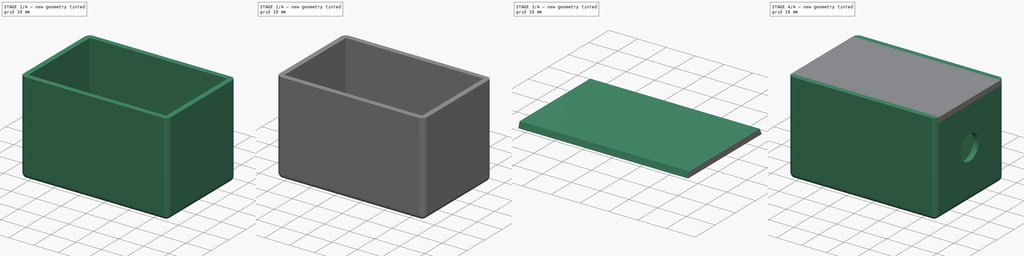
[diagram: build sequence overview — one tinted view per stage of 4, left to right]
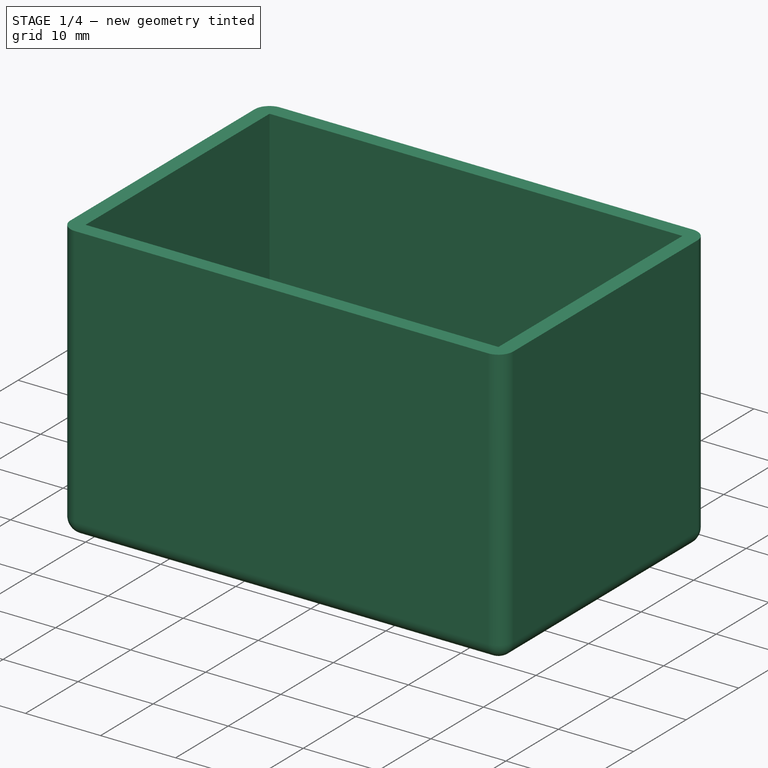
[diagram: stage 1 of 4 — iso view after this stage's code; geometry added in this stage tinted green]
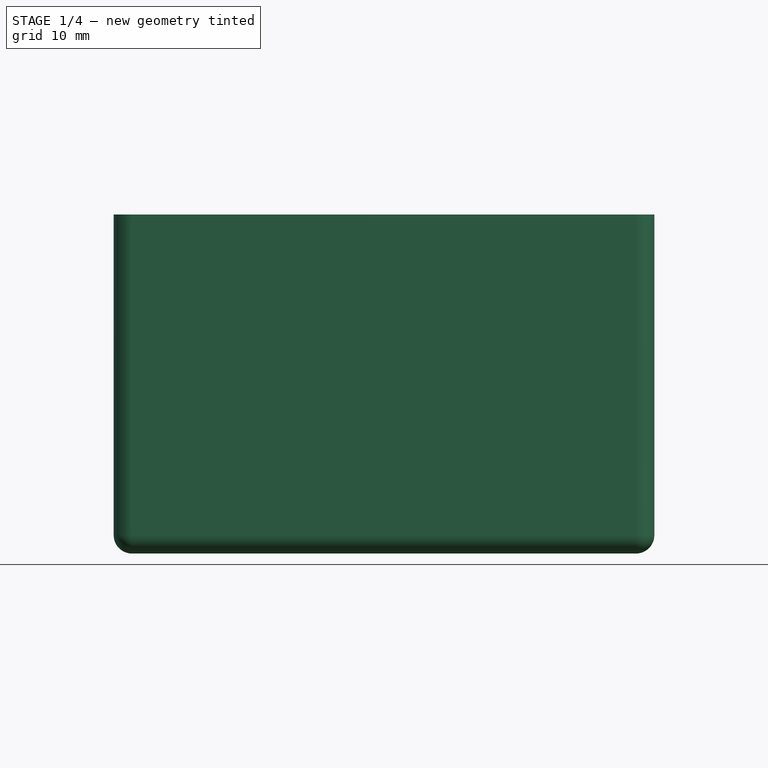
[diagram: stage 1 of 4 — front view after this stage's code; geometry added in this stage tinted green]
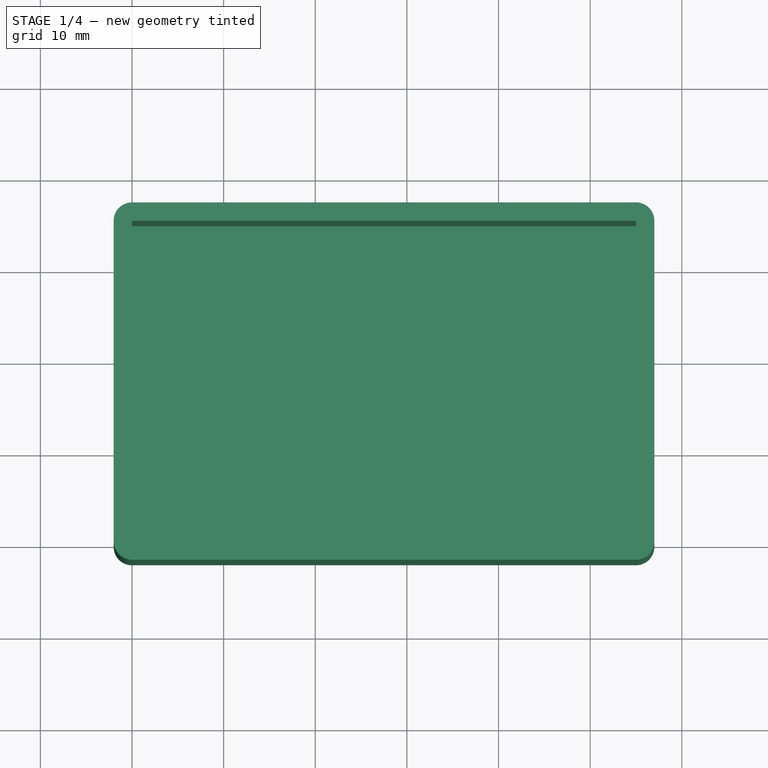
[diagram: stage 1 of 4 — top view after this stage's code; geometry added in this stage tinted green]
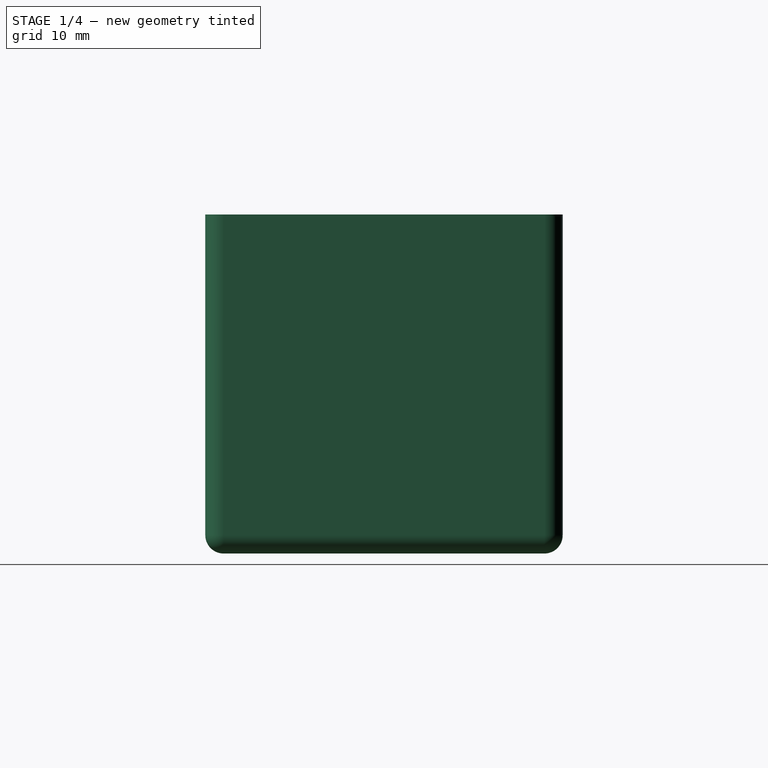
[diagram: stage 1 of 4 — right view after this stage's code; geometry added in this stage tinted green]
FCSTD DOCUMENT  (FreeCAD 0.20R29603 (Git))
Label: controlerBox
License: All rights reserved
LicenseURL: http://en.wikipedia.org/wiki/All_rights_reserved
objects: Sketcher::SketchObject×3, Part::Extrusion×3, Part::Cut×2, Part::Box×1, Part::Thickness×1, Part::MultiFuse×1, Part::FeaturePython×1
note: 12 computed .brp shape members not serialized (recipe doc carries the construction recipe); baked Part::Feature solids carry a one-line shape summary decoded from their .brp

FEATURE [Part::Box] Box  label="Cube"
  AttacherType = Attacher::AttachEngine3D
  Height = 35
  Length = 55
  Width = 35
FEATURE [Part::Thickness] Thickness
  Faces = -> Box [Face6]
  Intersection = false
  Join = 0
  Mode = 0
  SelfIntersection = false
  Value = 2
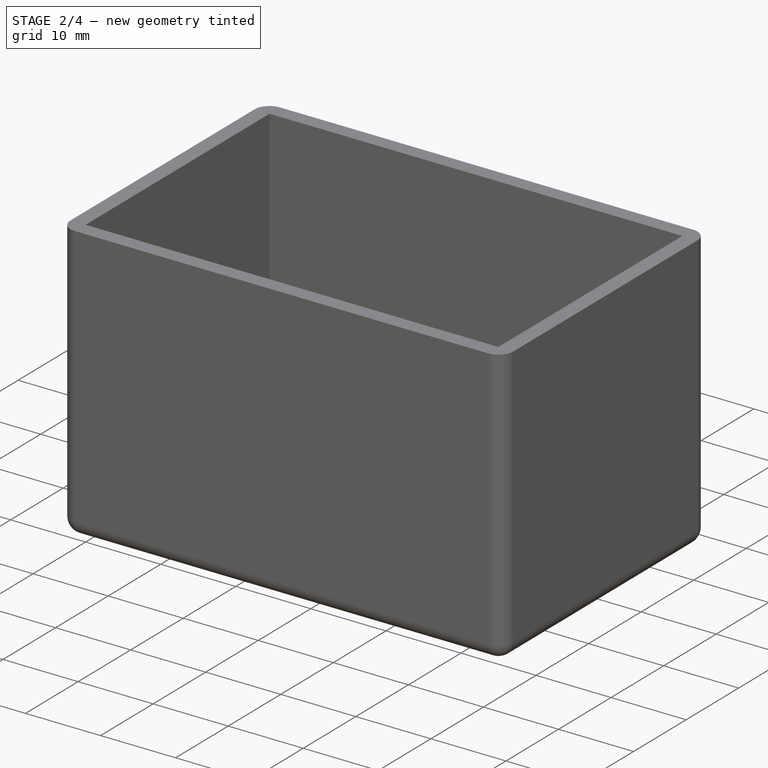
[diagram: stage 2 of 4 — iso view after this stage's code; geometry added in this stage tinted green]
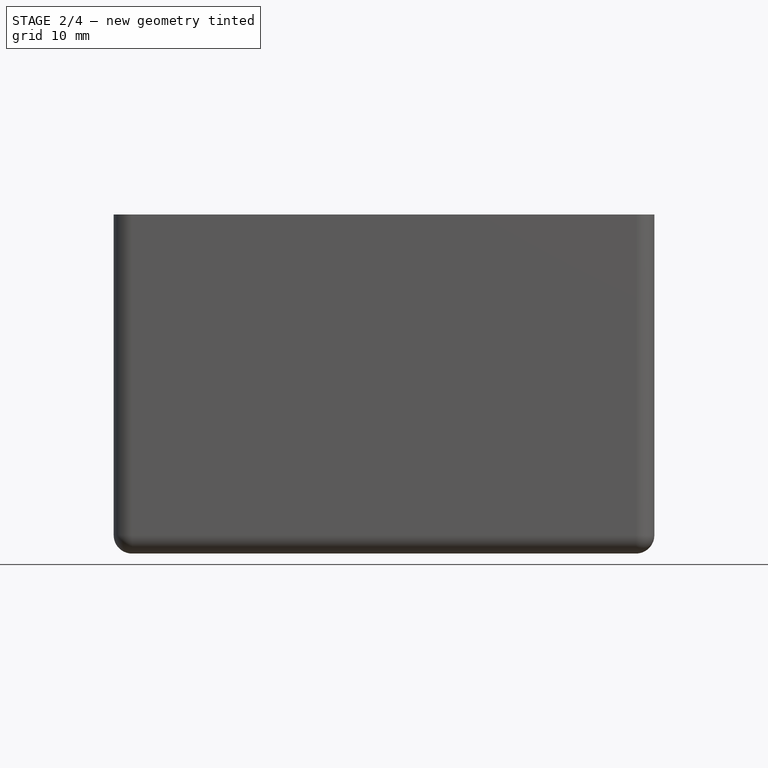
[diagram: stage 2 of 4 — front view after this stage's code; geometry added in this stage tinted green]
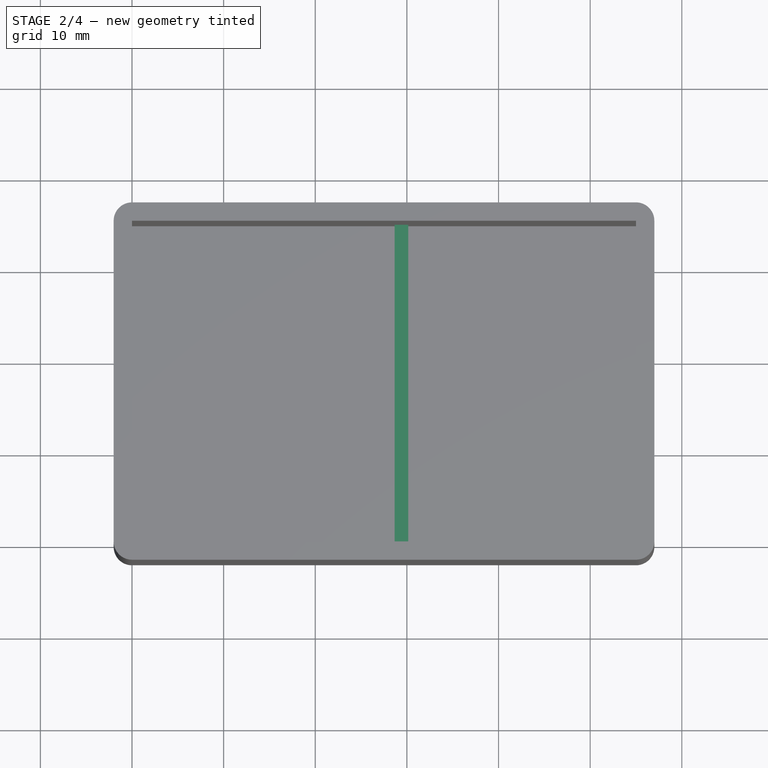
[diagram: stage 2 of 4 — top view after this stage's code; geometry added in this stage tinted green]
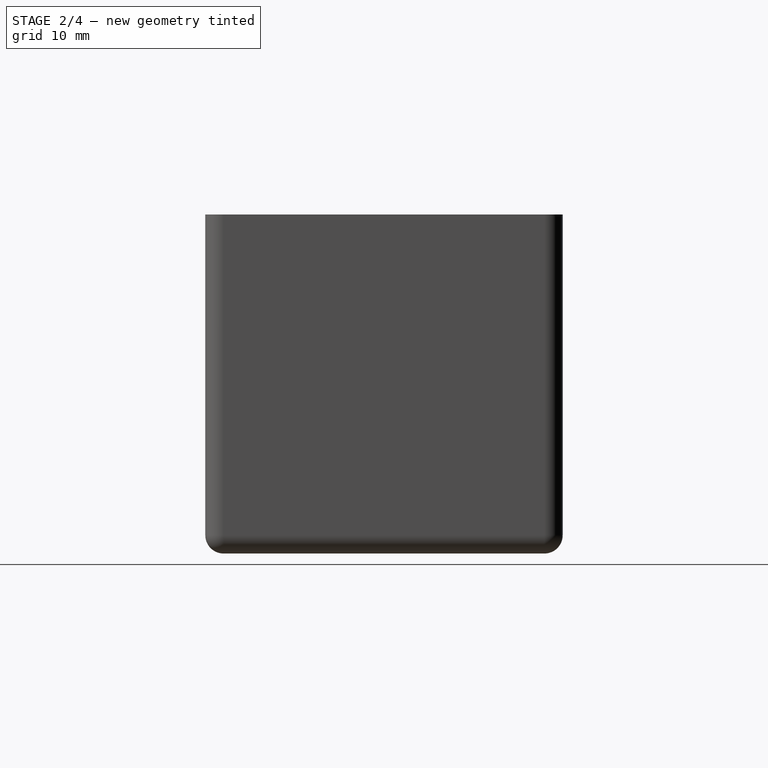
[diagram: stage 2 of 4 — right view after this stage's code; geometry added in this stage tinted green]
FEATURE [Sketcher::SketchObject] Sketch
  ExternalGeometry = -> [Thickness]
  FullyConstrained = false
  MapMode = 5
  Support = -> [Thickness]
  sketch-geometry (4):
    g0: LineSegment StartX=30.1467 StartY=35 StartZ=0 EndX=28.6553 EndY=35 EndZ=0
    g1: LineSegment StartX=28.6553 StartY=35 StartZ=0 EndX=28.6553 EndY=0 EndZ=0
    g2: LineSegment StartX=28.6553 StartY=0 StartZ=0 EndX=30.1467 EndY=0 EndZ=0
    g3: LineSegment StartX=30.1467 StartY=0 StartZ=0 EndX=30.1467 EndY=35 EndZ=0
  constraints (10):
    c: Coincident(g0,g1)
    c: Coincident(g1,g2)
    c: Coincident(g2,g3)
    c: Coincident(g3,g0)
    c: Horizontal(g0)
    c: Horizontal(g2)
    c: Vertical(g1)
    c: Vertical(g3)
    c: PointOnObject(g0,g-3)
    c: PointOnObject(g1,g-4)
FEATURE [Part::Extrusion] Extrude
  Base = -> Sketch
  Dir = (0,0,1)
  DirMode = 0
  FaceMakerClass = Part::FaceMakerBullseye
  LengthFwd = 10
  LengthRev = 0
  Solid = true
  Symmetric = false
FEATURE [Part::MultiFuse] Fusion
  Shapes = -> [Thickness,Extrude]
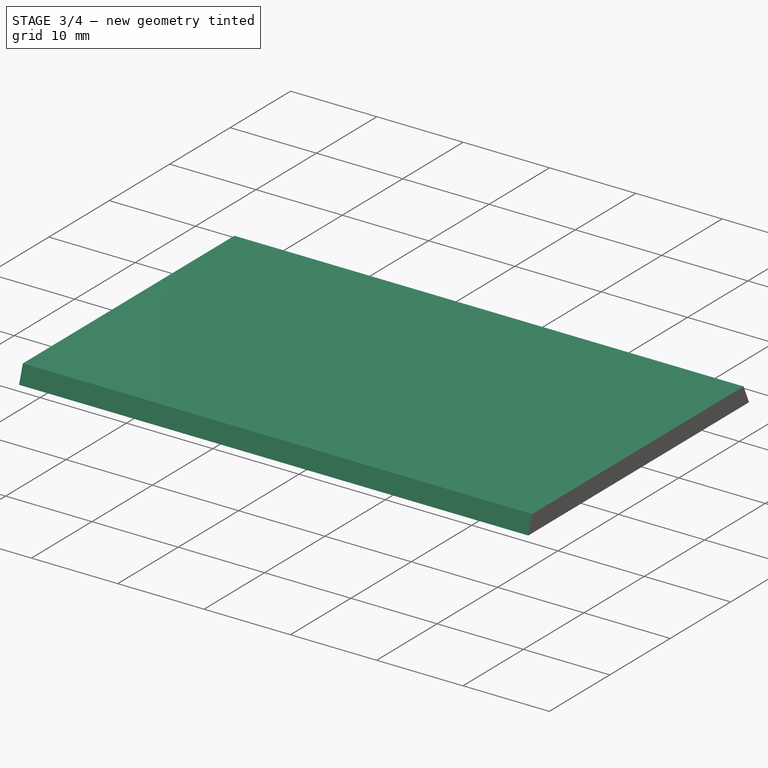
[diagram: stage 3 of 4 — iso view after this stage's code; geometry added in this stage tinted green]
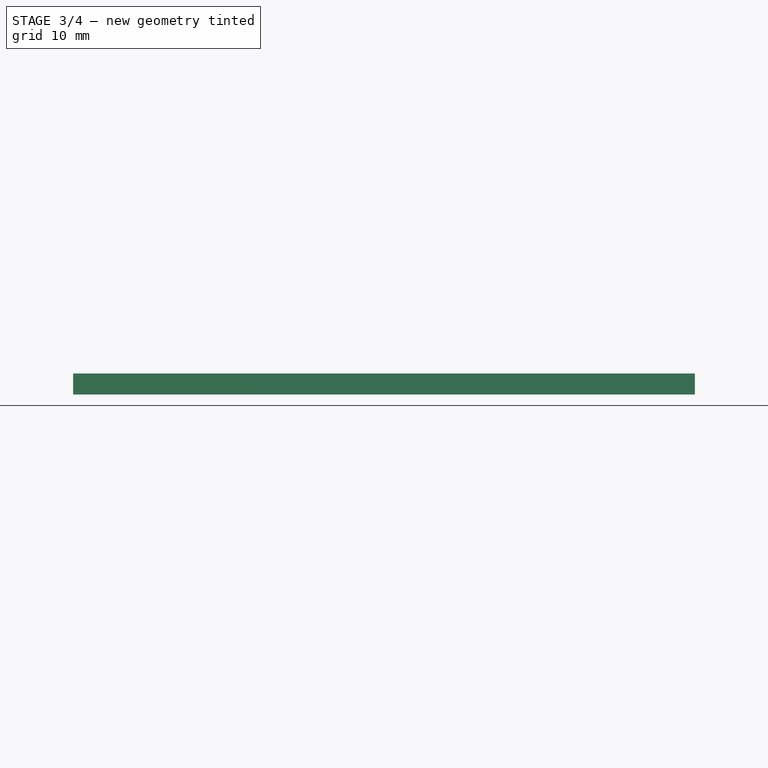
[diagram: stage 3 of 4 — front view after this stage's code; geometry added in this stage tinted green]
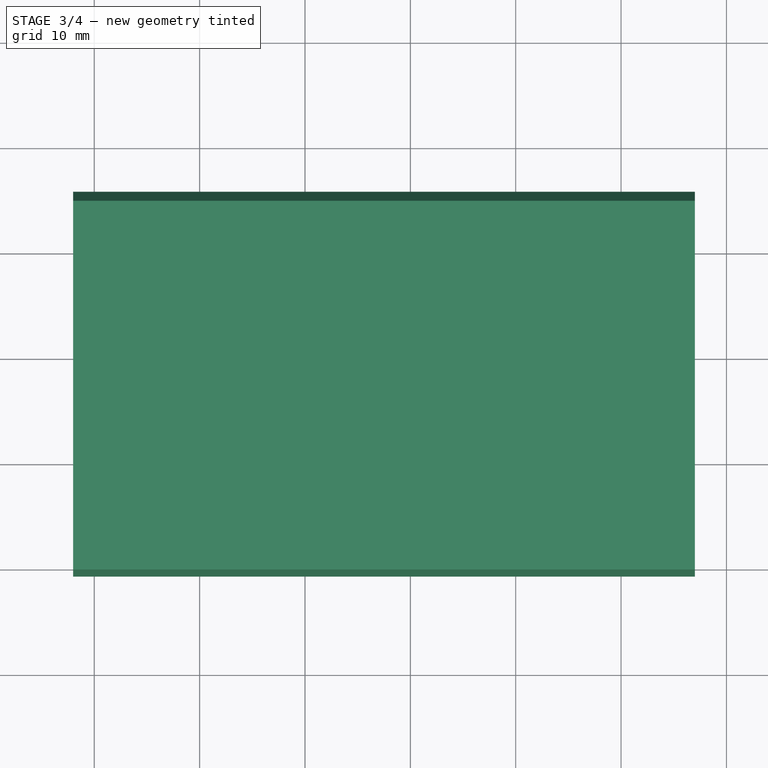
[diagram: stage 3 of 4 — top view after this stage's code; geometry added in this stage tinted green]
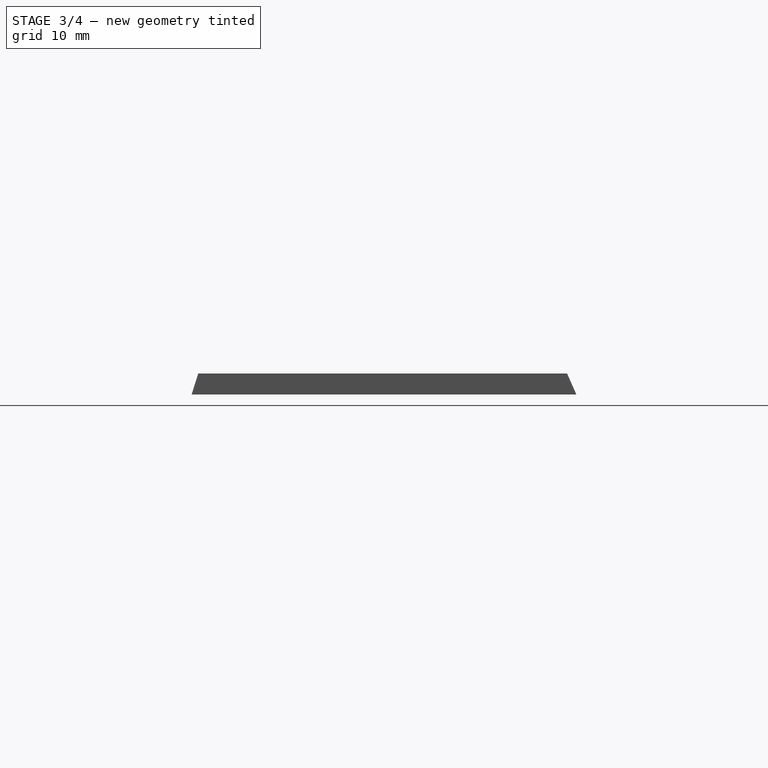
[diagram: stage 3 of 4 — right view after this stage's code; geometry added in this stage tinted green]
FEATURE [Sketcher::SketchObject] Sketch001
  ExternalGeometry = -> [Fusion]
  FullyConstrained = false
  MapMode = 5
  Placement = pos=(57,0,0) rot=(0.57735,0.57735,0.57735;2.0944rad)
  Support = -> [Fusion]
  sketch-geometry (3):
    g0: LineSegment StartX=35 StartY=35 StartZ=0 EndX=0 EndY=0 EndZ=0
    g1: LineSegment StartX=0 StartY=35 StartZ=0 EndX=35 EndY=0 EndZ=0
    g2: Circle CenterX=17.3834 CenterY=17.3834 CenterZ=0 NormalX=0 NormalY=0 NormalZ=1 AngleXU=0 Radius=5
  constraints (6):
    c: Coincident(g0,g-3)
    c: Coincident(g0,g-4)
    c: Coincident(g1,g-3)
    c: Coincident(g1,g-4)
    c: PointOnObject(g2,g0)
    c: Diameter(g2) = 10
FEATURE [Part::Extrusion] Extrude001
  Base = -> Sketch001
  Dir = (1,0,0)
  DirMode = 0
  FaceMakerClass = Part::FaceMakerBullseye
  LengthFwd = 4.5
  LengthRev = 0
  Solid = true
  Symmetric = true
FEATURE [Part::Cut] Cut  label="baseBox"
  Base = -> Fusion
  Tool = -> Extrude001
FEATURE [Sketcher::SketchObject] Sketch002
  ExternalGeometry = -> [Cut]
  FullyConstrained = false
  MapMode = 5
  Placement = pos=(57,0,0) rot=(0.57735,0.57735,0.57735;2.0944rad)
  Support = -> [Cut]
  sketch-geometry (4):
    g0: LineSegment StartX=-0.633947 StartY=33 StartZ=0 EndX=35.8886 EndY=33 EndZ=0
    g1: LineSegment StartX=35 StartY=35 StartZ=0 EndX=35.8886 EndY=33 EndZ=0
    g2: LineSegment StartX=0 StartY=35 StartZ=0 EndX=-0.633947 EndY=33 EndZ=0
    g3: LineSegment StartX=0 StartY=35 StartZ=0 EndX=35 EndY=35 EndZ=0
  constraints (12):
    c: Horizontal(g0)
    c: DistanceY(g0,g-7) = 2
    c: DistanceX(g-6,g-5) = 2
    c: DistanceX(g-4,g-7) = 2
    c: DistanceX(g-4,g-7) = 2
    c: DistanceX(g-4,g-4) = 2
    c: Coincident(g1,g-6)
    c: Coincident(g1,g0)
    c: Coincident(g2,g-7)
    c: Coincident(g2,g0)
    c: Coincident(g3,g2)
    c: Coincident(g3,g1)
FEATURE [Part::Extrusion] Extrude002
  Base = -> Sketch002
  Dir = (1,0,0)
  DirMode = 0
  FaceMakerClass = Part::FaceMakerBullseye
  LengthFwd = 59
  LengthRev = 0
  Reversed = true
  Solid = true
  Symmetric = false
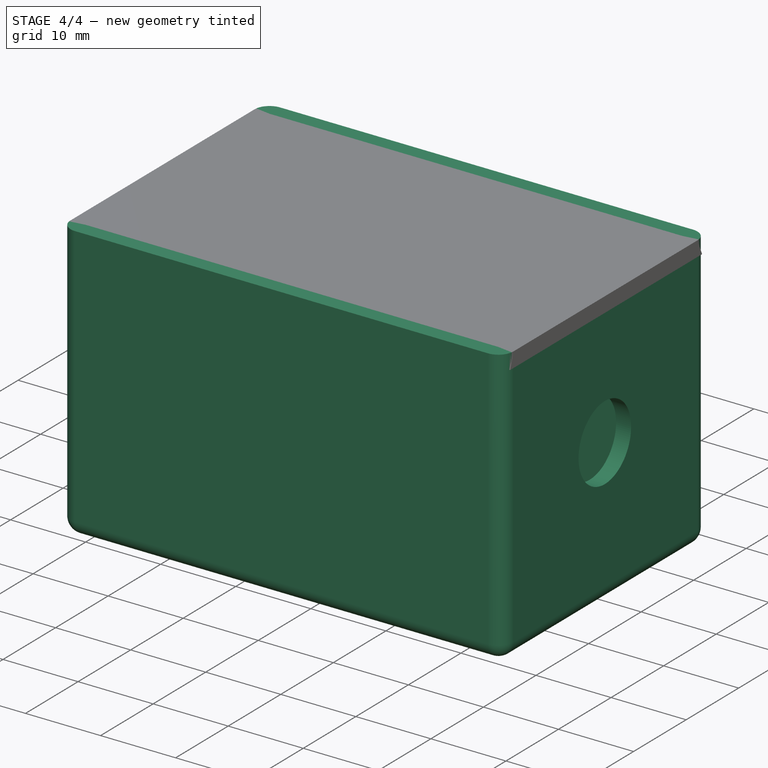
[diagram: stage 4 of 4 — iso view after this stage's code; geometry added in this stage tinted green]
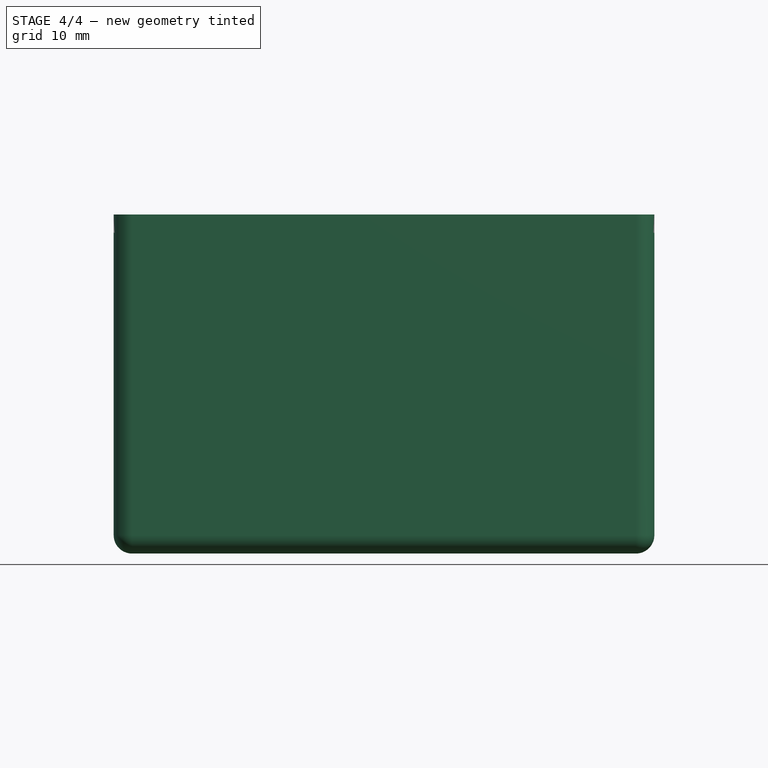
[diagram: stage 4 of 4 — front view after this stage's code; geometry added in this stage tinted green]
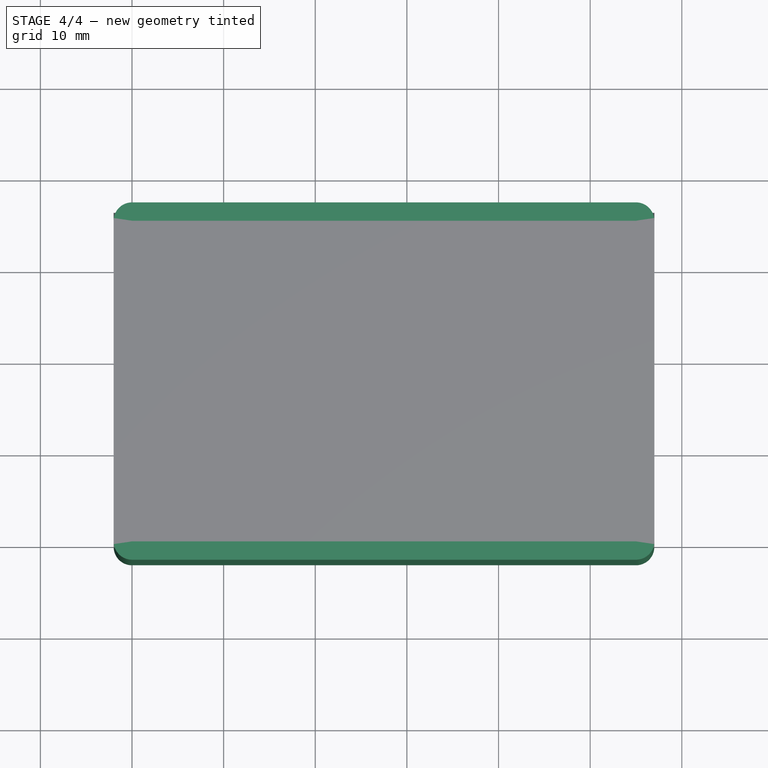
[diagram: stage 4 of 4 — top view after this stage's code; geometry added in this stage tinted green]
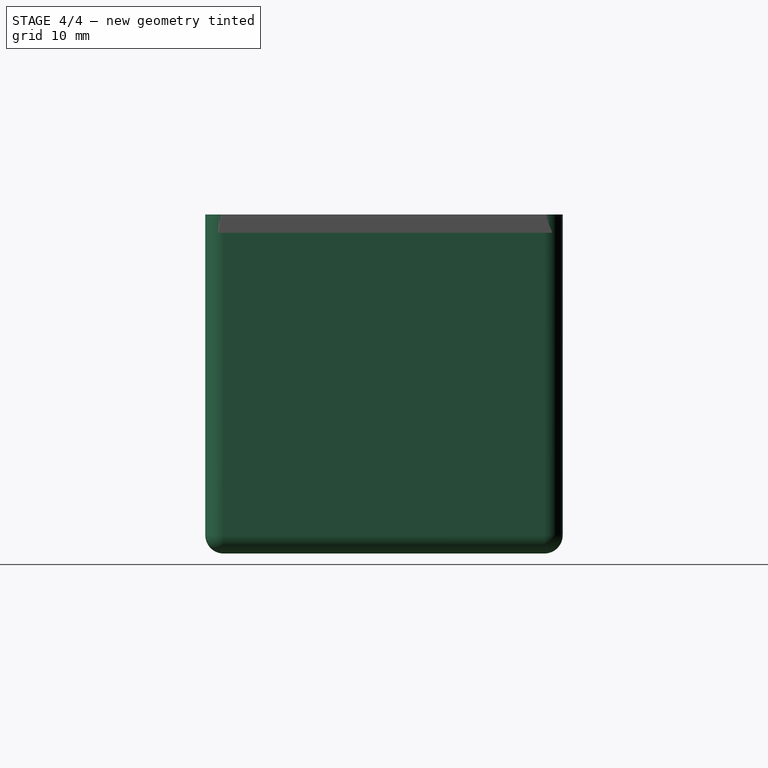
[diagram: stage 4 of 4 — right view after this stage's code; geometry added in this stage tinted green]
FEATURE [Part::Cut] Cut001
  Base = -> Cut
  Tool = -> Extrude002
FEATURE [Part::FeaturePython] Clone  label="cover"  # Draft clone (typed FeaturePython)
  AttacherType = Attacher::AttachEngine3D
  Fuse = false
  Objects = -> [Extrude002]
  Scale = (1,1,1)
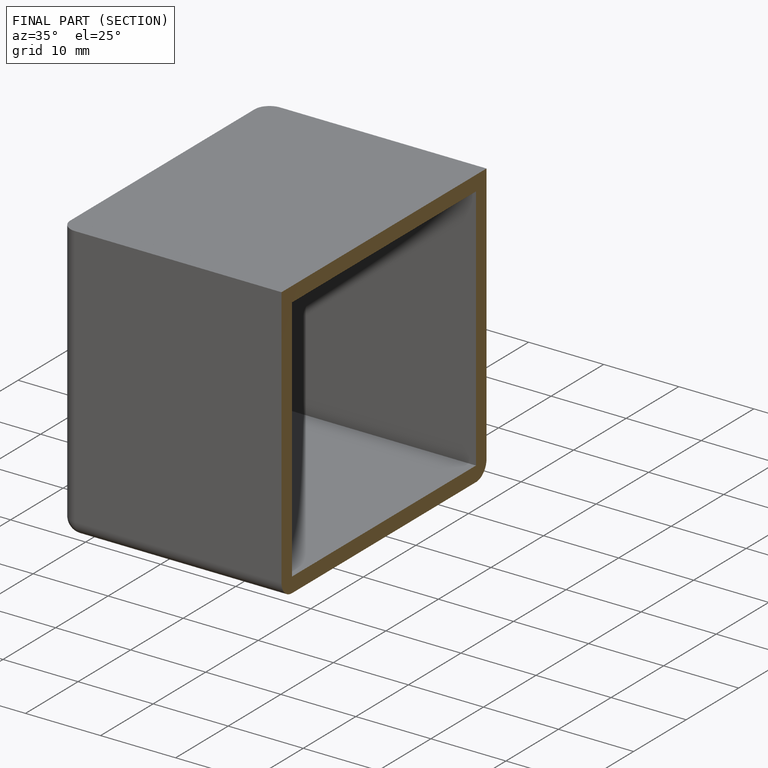
[diagram: finished part — half-section view (interior)]
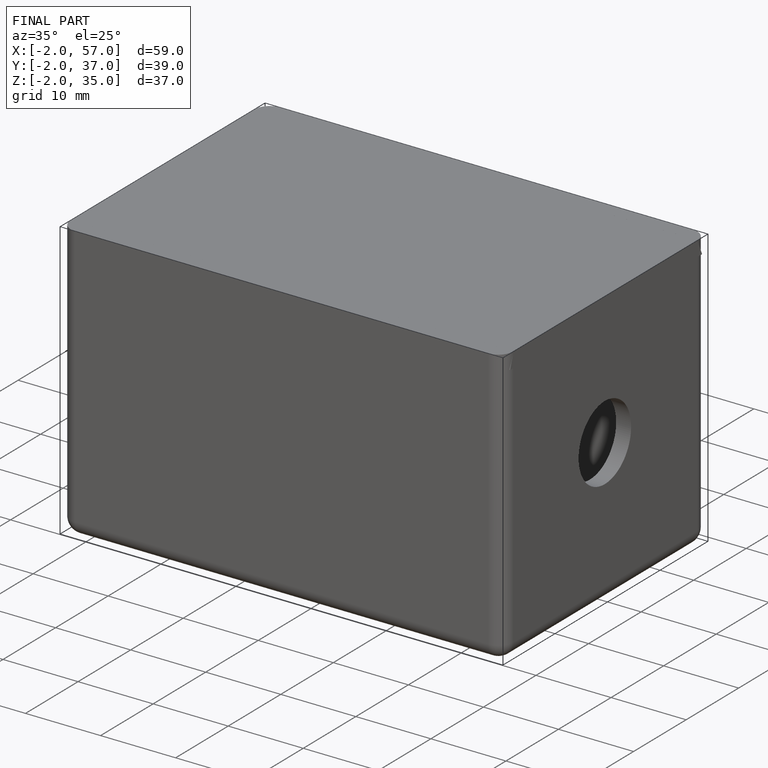
[diagram: finished part — iso view with bounding-box wireframe]
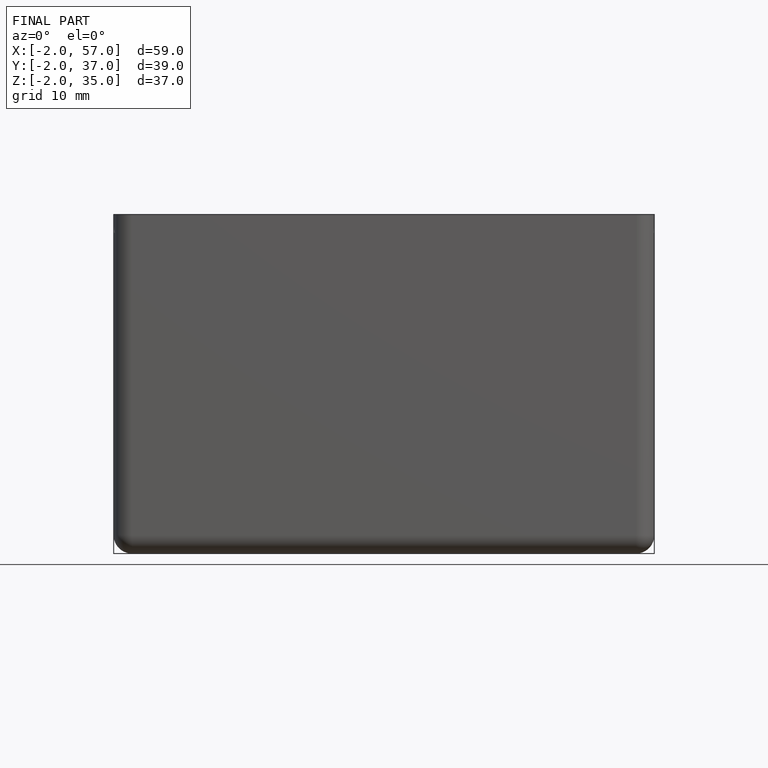
[diagram: finished part — front view with bounding-box wireframe]
